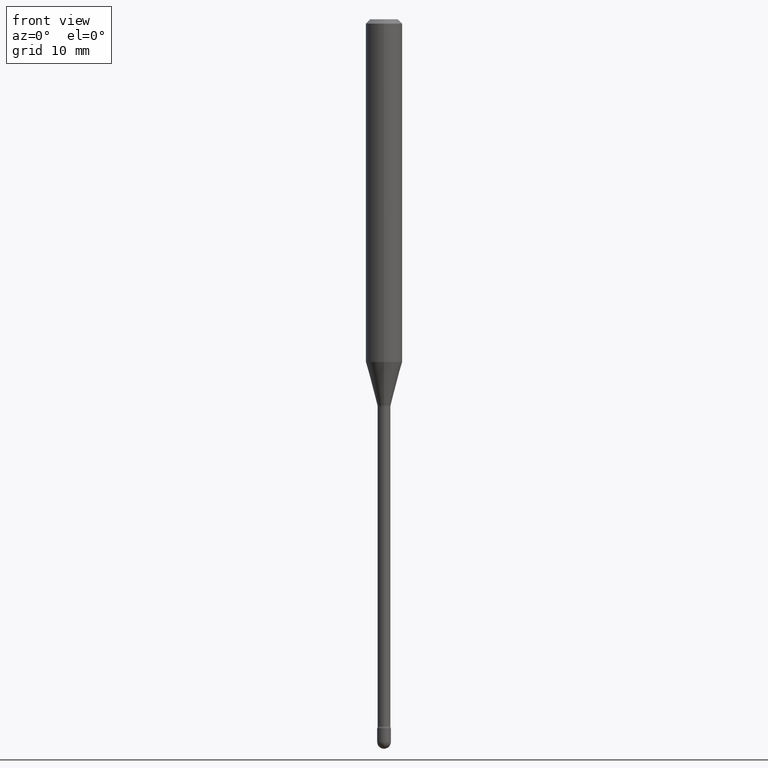
[diagram: clean part render]
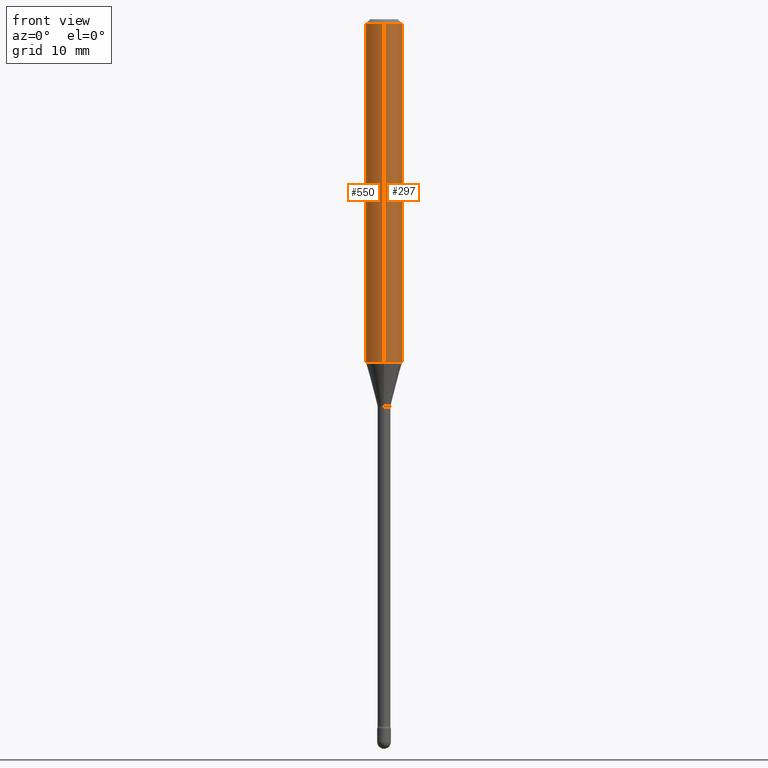
[diagram: same view with one multi-face feature highlighted, each face labeled with its STEP entity id]
A machine part, front view. The highlighted faces form ONE feature: a constant-radius fillet chain: 2 tangent blend faces with common blend radius 1.5875 mm. The faces share edges in the B-rep.
Their STEP definitions:
[1] entity #550 (Cylinder):
#2 = EDGE_CURVE ( 'NONE', #5, #361, #333, .T. ) ;
#5 = VERTEX_POINT ( 'NONE', #68 ) ;
#14 = EDGE_LOOP ( 'NONE', ( #414, #293, #231, #38 ) ) ;
#27 = DIRECTION ( 'NONE',  ( -2.445456806742390166E-29, 3.491498522728124281E-15, 1.000000000000000000 ) ) ;
#28 = CARTESIAN_POINT ( 'NONE',  ( -4.364351673553912750E-16, -0.06250000000000005551, -0.01499999999999986587 ) ) ;
#38 = ORIENTED_EDGE ( 'NONE', *, *, #99, .F. ) ;
#50 = VERTEX_POINT ( 'NONE', #242 ) ;
#68 = CARTESIAN_POINT ( 'NONE',  ( 4.440892098500910152E-16, 0.06249999999999587830, -1.174225147374218237 ) ) ;
#74 = DIRECTION ( 'NONE',  ( -2.445456806742389886E-29, 3.491498522728124281E-15, 1.000000000000000000 ) ) ;
#97 = AXIS2_PLACEMENT_3D ( 'NONE', #418, #27, #199 ) ;
#99 = EDGE_CURVE ( 'NONE', #361, #364, #512, .T. ) ;
#112 = AXIS2_PLACEMENT_3D ( 'NONE', #428, #342, #170 ) ;
#129 = EDGE_CURVE ( 'NONE', #50, #364, #308, .T. ) ;
#168 = VECTOR ( 'NONE', #74, 39.37007874015748143 ) ;
#169 = EDGE_CURVE ( 'NONE', #5, #50, #371, .T. ) ;
#170 = DIRECTION ( 'NONE',  ( -6.982962677686265922E-15, -1.000000000000000000, 4.370956789862821150E-15 ) ) ;
#175 = DIRECTION ( 'NONE',  ( -2.445456806742389886E-29, 3.491498522728124281E-15, 1.000000000000000000 ) ) ;
#199 = DIRECTION ( 'NONE',  ( -6.982962677686265922E-15, -1.000000000000000000, 3.483106191921935554E-15 ) ) ;
#230 = AXIS2_PLACEMENT_3D ( 'NONE', #478, #384, #562 ) ;
#231 = ORIENTED_EDGE ( 'NONE', *, *, #129, .T. ) ;
#242 = CARTESIAN_POINT ( 'NONE',  ( -4.364351673553631225E-16, -0.06250000000000412170, -1.174225147374217793 ) ) ;
#244 = VECTOR ( 'NONE', #175, 39.37007874015748143 ) ;
#293 = ORIENTED_EDGE ( 'NONE', *, *, #169, .T. ) ;
#303 = FACE_OUTER_BOUND ( 'NONE', #14, .T. ) ;
#308 = LINE ( 'NONE', #521, #244 ) ;
#333 = LINE ( 'NONE', #378, #168 ) ;
#342 = DIRECTION ( 'NONE',  ( -2.445456806742390166E-29, 3.491498522728124281E-15, 1.000000000000000000 ) ) ;
#361 = VERTEX_POINT ( 'NONE', #544 ) ;
#364 = VERTEX_POINT ( 'NONE', #28 ) ;
#371 = CIRCLE ( 'NONE', #112, 0.06250000000000000000 ) ;
#378 = CARTESIAN_POINT ( 'NONE',  ( 4.440892098500625669E-16, 0.06250000000000000000, 2.598547412207382957E-16 ) ) ;
#384 = DIRECTION ( 'NONE',  ( -2.445456806742390166E-29, 3.491498522728124281E-15, 1.000000000000000000 ) ) ;
#414 = ORIENTED_EDGE ( 'NONE', *, *, #2, .F. ) ;
#418 = CARTESIAN_POINT ( 'NONE',  ( 3.668185210113605428E-31, -5.237247784092215166E-17, -0.01500000000000008271 ) ) ;
#423 = CYLINDRICAL_SURFACE ( 'NONE', #230, 0.06250000000000000000 ) ;
#428 = CARTESIAN_POINT ( 'NONE',  ( 2.871516879294367278E-29, -4.099805367407296517E-15, -1.174225147374218015 ) ) ;
#478 = CARTESIAN_POINT ( 'NONE',  ( -1.169113584055446105E-44, 1.669184350826100908E-30, 4.780733988912460139E-16 ) ) ;
#512 = CIRCLE ( 'NONE', #97, 0.06250000000000000000 ) ;
#521 = CARTESIAN_POINT ( 'NONE',  ( -4.364351673553916201E-16, -0.06250000000000000000, 6.962920565617538308E-16 ) ) ;
#544 = CARTESIAN_POINT ( 'NONE',  ( 4.440892098500914096E-16, 0.06249999999999995143, -0.01500000000000030129 ) ) ;
#550 = ADVANCED_FACE ( 'NONE', ( #303 ), #423, .T. ) ;
#562 = DIRECTION ( 'NONE',  ( -6.982962677686265922E-15, -1.000000000000000000, 3.491498522728124676E-15 ) ) ;
[2] entity #297 (Cylinder):
#2 = EDGE_CURVE ( 'NONE', #5, #361, #333, .T. ) ;
#5 = VERTEX_POINT ( 'NONE', #68 ) ;
#16 = CIRCLE ( 'NONE', #309, 0.06250000000000000000 ) ;
#28 = CARTESIAN_POINT ( 'NONE',  ( -4.364351673553912750E-16, -0.06250000000000005551, -0.01499999999999986587 ) ) ;
#42 = CARTESIAN_POINT ( 'NONE',  ( -1.169113584055446105E-44, 1.669184350826100908E-30, 4.780733988912460139E-16 ) ) ;
#50 = VERTEX_POINT ( 'NONE', #242 ) ;
#68 = CARTESIAN_POINT ( 'NONE',  ( 4.440892098500910152E-16, 0.06249999999999587830, -1.174225147374218237 ) ) ;
#74 = DIRECTION ( 'NONE',  ( -2.445456806742389886E-29, 3.491498522728124281E-15, 1.000000000000000000 ) ) ;
#87 = CIRCLE ( 'NONE', #152, 0.06250000000000000000 ) ;
#111 = CARTESIAN_POINT ( 'NONE',  ( 2.871516879294367278E-29, -4.099805367407296517E-15, -1.174225147374218015 ) ) ;
#129 = EDGE_CURVE ( 'NONE', #50, #364, #308, .T. ) ;
#152 = AXIS2_PLACEMENT_3D ( 'NONE', #213, #528, #220 ) ;
#168 = VECTOR ( 'NONE', #74, 39.37007874015748143 ) ;
#175 = DIRECTION ( 'NONE',  ( -2.445456806742389886E-29, 3.491498522728124281E-15, 1.000000000000000000 ) ) ;
#184 = EDGE_CURVE ( 'NONE', #364, #361, #87, .T. ) ;
#207 = DIRECTION ( 'NONE',  ( -6.982962677686265922E-15, -1.000000000000000000, 4.370956789862821150E-15 ) ) ;
#211 = DIRECTION ( 'NONE',  ( -2.445456806742390166E-29, 3.491498522728124281E-15, 1.000000000000000000 ) ) ;
#213 = CARTESIAN_POINT ( 'NONE',  ( 3.668185210113605428E-31, -5.237247784092215166E-17, -0.01500000000000008271 ) ) ;
#217 = DIRECTION ( 'NONE',  ( -6.982962677686265922E-15, -1.000000000000000000, 3.491498522728124676E-15 ) ) ;
#220 = DIRECTION ( 'NONE',  ( -6.982962677686265922E-15, -1.000000000000000000, 3.483106191921935554E-15 ) ) ;
#234 = AXIS2_PLACEMENT_3D ( 'NONE', #42, #526, #217 ) ;
#237 = ORIENTED_EDGE ( 'NONE', *, *, #184, .F. ) ;
#242 = CARTESIAN_POINT ( 'NONE',  ( -4.364351673553631225E-16, -0.06250000000000412170, -1.174225147374217793 ) ) ;
#244 = VECTOR ( 'NONE', #175, 39.37007874015748143 ) ;
#262 = FACE_OUTER_BOUND ( 'NONE', #477, .T. ) ;
#283 = ORIENTED_EDGE ( 'NONE', *, *, #457, .T. ) ;
#284 = ORIENTED_EDGE ( 'NONE', *, *, #2, .T. ) ;
#297 = ADVANCED_FACE ( 'NONE', ( #262 ), #433, .T. ) ;
#308 = LINE ( 'NONE', #521, #244 ) ;
#309 = AXIS2_PLACEMENT_3D ( 'NONE', #111, #211, #207 ) ;
#333 = LINE ( 'NONE', #378, #168 ) ;
#361 = VERTEX_POINT ( 'NONE', #544 ) ;
#364 = VERTEX_POINT ( 'NONE', #28 ) ;
#378 = CARTESIAN_POINT ( 'NONE',  ( 4.440892098500625669E-16, 0.06250000000000000000, 2.598547412207382957E-16 ) ) ;
#433 = CYLINDRICAL_SURFACE ( 'NONE', #234, 0.06250000000000000000 ) ;
#457 = EDGE_CURVE ( 'NONE', #50, #5, #16, .T. ) ;
#477 = EDGE_LOOP ( 'NONE', ( #283, #284, #237, #497 ) ) ;
#497 = ORIENTED_EDGE ( 'NONE', *, *, #129, .F. ) ;
#521 = CARTESIAN_POINT ( 'NONE',  ( -4.364351673553916201E-16, -0.06250000000000000000, 6.962920565617538308E-16 ) ) ;
#526 = DIRECTION ( 'NONE',  ( -2.445456806742390166E-29, 3.491498522728124281E-15, 1.000000000000000000 ) ) ;
#528 = DIRECTION ( 'NONE',  ( -2.445456806742390166E-29, 3.491498522728124281E-15, 1.000000000000000000 ) ) ;
#544 = CARTESIAN_POINT ( 'NONE',  ( 4.440892098500914096E-16, 0.06249999999999995143, -0.01500000000000030129 ) ) ;